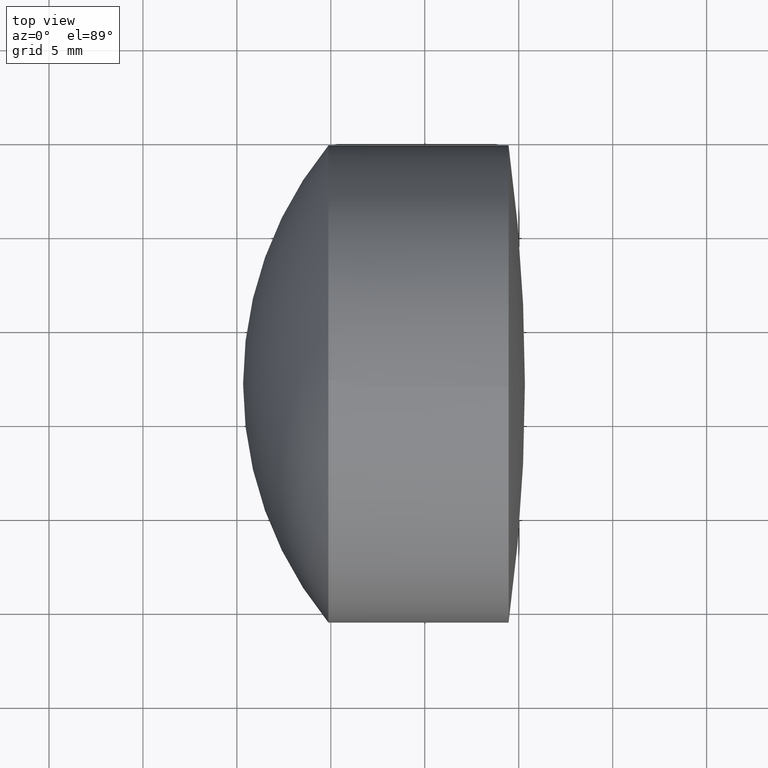
[diagram: clean part render]
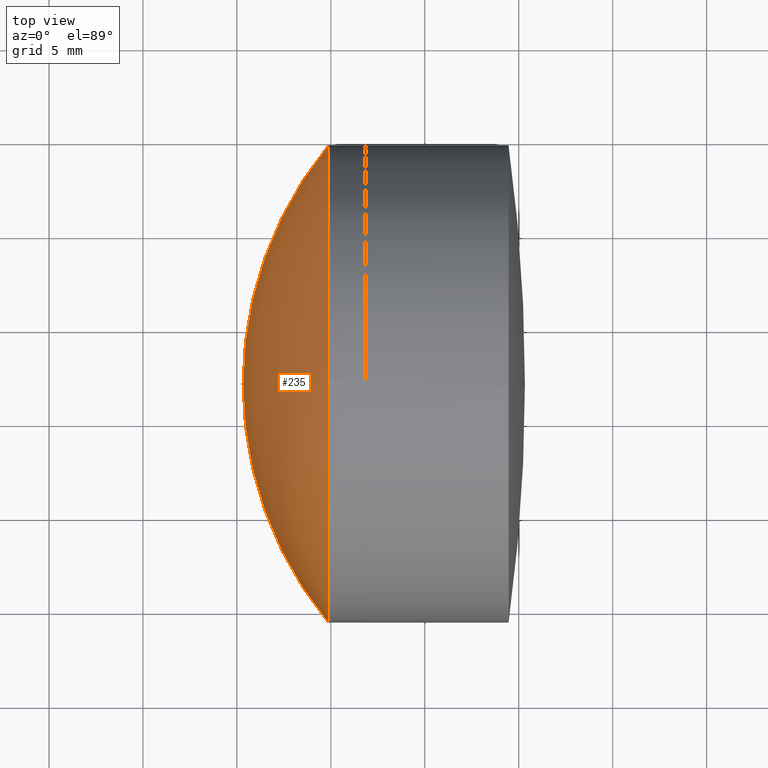
[diagram: same view with one face highlighted and labeled with its STEP entity id]
A machine part, top view. The second image highlights one B-rep face of the part: STEP entity #235.
In plain terms, the highlighted spherical surface has radius 20.03 mm.
Its self-contained STEP definition (entity closure, byte-faithful):
#2 = DIRECTION ( 'NONE',  ( -0.000000000000000000, 0.000000000000000000, 1.000000000000000000 ) ) ;
#14 = DIRECTION ( 'NONE',  ( -1.000000000000000000, -0.000000000000000000, -0.000000000000000000 ) ) ;
#26 = EDGE_CURVE ( 'NONE', #87, #283, #173, .T. ) ;
#34 = ORIENTED_EDGE ( 'NONE', *, *, #62, .T. ) ;
#42 = DIRECTION ( 'NONE',  ( 0.000000000000000000, 0.000000000000000000, 1.000000000000000000 ) ) ;
#57 = EDGE_LOOP ( 'NONE', ( #101, #273, #34, #259 ) ) ;
#62 = EDGE_CURVE ( 'NONE', #283, #83, #211, .T. ) ;
#65 = CARTESIAN_POINT ( 'NONE',  ( -19.63995810697359445, 32.03284803661706093, 0.000000000000000000 ) ) ;
#83 = VERTEX_POINT ( 'NONE', #386 ) ;
#87 = VERTEX_POINT ( 'NONE', #262 ) ;
#101 = ORIENTED_EDGE ( 'NONE', *, *, #446, .F. ) ;
#114 = DIRECTION ( 'NONE',  ( 0.000000000000000000, 0.000000000000000000, 1.000000000000000000 ) ) ;
#115 = AXIS2_PLACEMENT_3D ( 'NONE', #65, #2, #272 ) ;
#130 = FACE_OUTER_BOUND ( 'NONE', #57, .T. ) ;
#138 = DIRECTION ( 'NONE',  ( -0.000000000000000000, 0.000000000000000000, -1.000000000000000000 ) ) ;
#147 = CARTESIAN_POINT ( 'NONE',  ( -35.12901553471916571, 32.03284803661706093, 12.69999999999999929 ) ) ;
#156 = CARTESIAN_POINT ( 'NONE',  ( -35.12901553471916571, 32.03284803661706093, 0.000000000000000000 ) ) ;
#173 = CIRCLE ( 'NONE', #266, 12.69999999999999929 ) ;
#176 = AXIS2_PLACEMENT_3D ( 'NONE', #291, #227, #182 ) ;
#182 = DIRECTION ( 'NONE',  ( 0.000000000000000000, 1.000000000000000000, 1.224646799147353207E-16 ) ) ;
#211 = CIRCLE ( 'NONE', #440, 12.69999999999999929 ) ;
#221 = DIRECTION ( 'NONE',  ( -1.000000000000000000, -0.000000000000000000, -0.000000000000000000 ) ) ;
#227 = DIRECTION ( 'NONE',  ( 0.000000000000000000, 1.224646799147353207E-16, -1.000000000000000000 ) ) ;
#235 = ADVANCED_FACE ( 'NONE', ( #130 ), #417, .T. ) ;
#241 = DIRECTION ( 'NONE',  ( 0.000000000000000000, 1.000000000000000000, 0.000000000000000000 ) ) ;
#249 = CIRCLE ( 'NONE', #176, 20.03000000000000469 ) ;
#250 = VERTEX_POINT ( 'NONE', #274 ) ;
#259 = ORIENTED_EDGE ( 'NONE', *, *, #265, .T. ) ;
#262 = CARTESIAN_POINT ( 'NONE',  ( -35.12901553471916571, 19.33284803661705809, -1.555301434917138630E-15 ) ) ;
#265 = EDGE_CURVE ( 'NONE', #83, #250, #330, .T. ) ;
#266 = AXIS2_PLACEMENT_3D ( 'NONE', #156, #221, #42 ) ;
#272 = DIRECTION ( 'NONE',  ( 1.000000000000000000, 0.000000000000000000, 0.000000000000000000 ) ) ;
#273 = ORIENTED_EDGE ( 'NONE', *, *, #26, .T. ) ;
#274 = CARTESIAN_POINT ( 'NONE',  ( -39.66995810697360270, 32.03284803661706093, 0.000000000000000000 ) ) ;
#276 = AXIS2_PLACEMENT_3D ( 'NONE', #334, #138, #241 ) ;
#283 = VERTEX_POINT ( 'NONE', #147 ) ;
#291 = CARTESIAN_POINT ( 'NONE',  ( -19.63995810697359445, 32.03284803661706093, 0.000000000000000000 ) ) ;
#318 = CARTESIAN_POINT ( 'NONE',  ( -35.12901553471916571, 32.03284803661706093, 0.000000000000000000 ) ) ;
#330 = CIRCLE ( 'NONE', #115, 20.03000000000000469 ) ;
#334 = CARTESIAN_POINT ( 'NONE',  ( -19.63995810697359445, 32.03284803661706093, 0.000000000000000000 ) ) ;
#386 = CARTESIAN_POINT ( 'NONE',  ( -35.12901553471916571, 44.73284803661706377, 0.000000000000000000 ) ) ;
#417 = SPHERICAL_SURFACE ( 'NONE', #276, 20.03000000000000469 ) ;
#440 = AXIS2_PLACEMENT_3D ( 'NONE', #318, #14, #114 ) ;
#446 = EDGE_CURVE ( 'NONE', #87, #250, #249, .T. ) ;